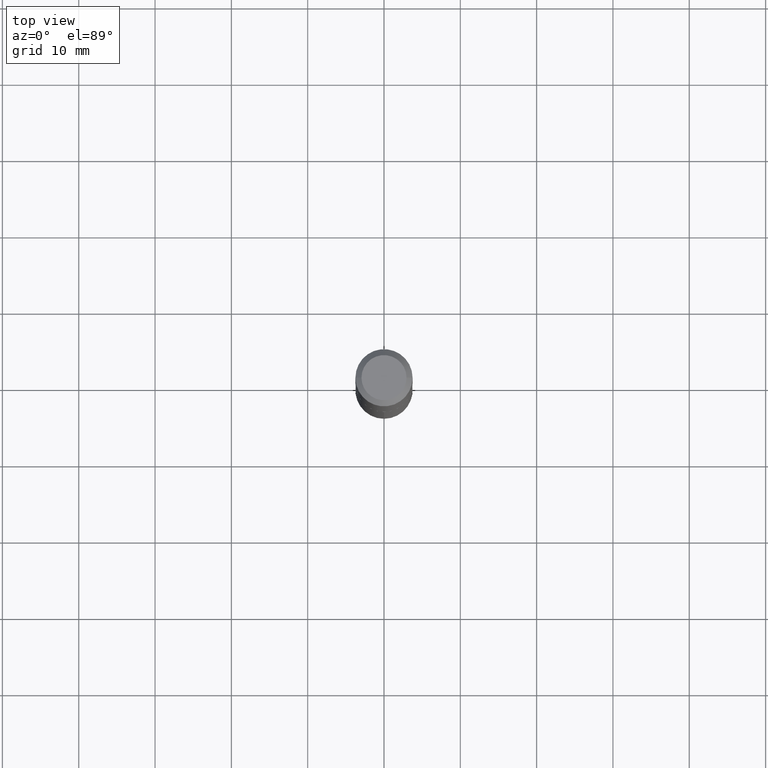
[diagram: clean part render]
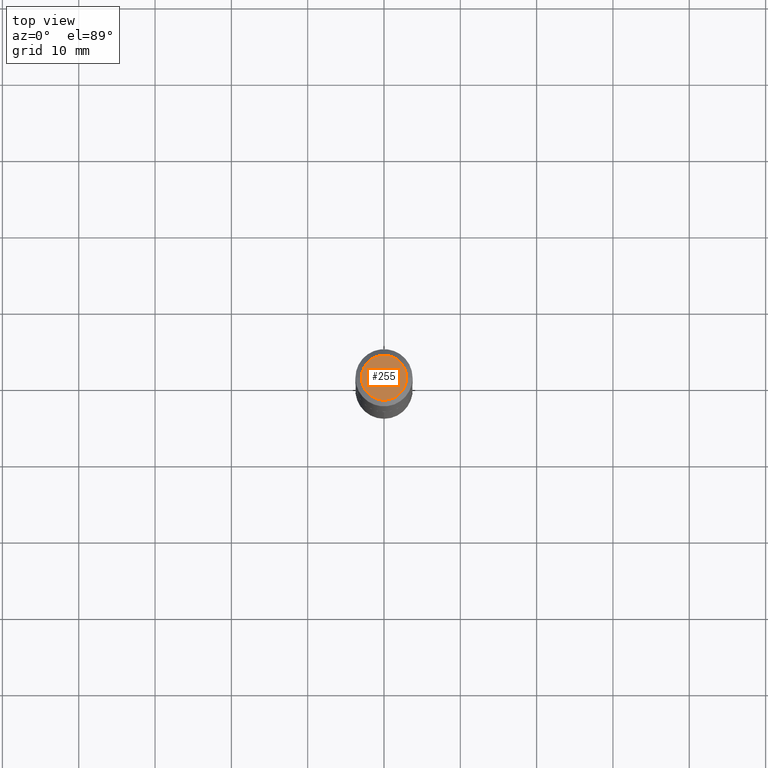
[diagram: same view with one face highlighted and labeled with its STEP entity id]
A machine part, top view. The second image highlights one B-rep face of the part: STEP entity #255.
In plain terms, the highlighted planar face has unit normal (0, -0, -1).
Its self-contained STEP definition (entity closure, byte-faithful):
#10 = CARTESIAN_POINT ( 'NONE',  ( -3.743544432386685216E-48, 5.344789307371254673E-34, 1.530808498934202323E-19 ) ) ;
#37 = DIRECTION ( 'NONE',  ( 2.438088387897960049E-29, -3.491481338843145188E-15, -1.000000000000000000 ) ) ;
#43 = DIRECTION ( 'NONE',  ( 1.000000000000000000, -6.982962677686266711E-15, 4.876177086992617819E-29 ) ) ;
#51 = ORIENTED_EDGE ( 'NONE', *, *, #371, .T. ) ;
#68 = CIRCLE ( 'NONE', #262, 0.1162499999999999922 ) ;
#99 = FACE_OUTER_BOUND ( 'NONE', #191, .T. ) ;
#118 = AXIS2_PLACEMENT_3D ( 'NONE', #10, #37, #253 ) ;
#137 = PLANE ( 'NONE',  #118 ) ;
#175 = ORIENTED_EDGE ( 'NONE', *, *, #269, .T. ) ;
#191 = EDGE_LOOP ( 'NONE', ( #175, #51 ) ) ;
#202 = VERTEX_POINT ( 'NONE', #333 ) ;
#218 = DIRECTION ( 'NONE',  ( 1.000000000000000000, -6.982962677686266711E-15, 4.876177086992617819E-29 ) ) ;
#234 = AXIS2_PLACEMENT_3D ( 'NONE', #251, #310, #218 ) ;
#251 = CARTESIAN_POINT ( 'NONE',  ( -7.487088864773370432E-48, 1.068957861474250935E-33, 3.061616997868404646E-19 ) ) ;
#253 = DIRECTION ( 'NONE',  ( -1.000000000000000000, 6.982962677686265922E-15, -4.876176775795935793E-29 ) ) ;
#255 = ADVANCED_FACE ( 'NONE', ( #99 ), #137, .F. ) ;
#261 = CARTESIAN_POINT ( 'NONE',  ( -7.487088864773370432E-48, 1.068957861474250935E-33, 3.061616997868404646E-19 ) ) ;
#262 = AXIS2_PLACEMENT_3D ( 'NONE', #261, #375, #43 ) ;
#269 = EDGE_CURVE ( 'NONE', #202, #350, #300, .T. ) ;
#300 = CIRCLE ( 'NONE', #234, 0.1162499999999999922 ) ;
#310 = DIRECTION ( 'NONE',  ( -2.445468806185136597E-29, 3.491481338843145583E-15, 1.000000000000000000 ) ) ;
#333 = CARTESIAN_POINT ( 'NONE',  ( -0.1162499999999999922, 8.663238072004519116E-16, 3.061616997809728783E-19 ) ) ;
#350 = VERTEX_POINT ( 'NONE', #351 ) ;
#351 = CARTESIAN_POINT ( 'NONE',  ( 0.1162499999999999922, -9.592825693755452120E-16, 3.061616997930326664E-19 ) ) ;
#371 = EDGE_CURVE ( 'NONE', #350, #202, #68, .T. ) ;
#375 = DIRECTION ( 'NONE',  ( -2.445468806185136597E-29, 3.491481338843145583E-15, 1.000000000000000000 ) ) ;